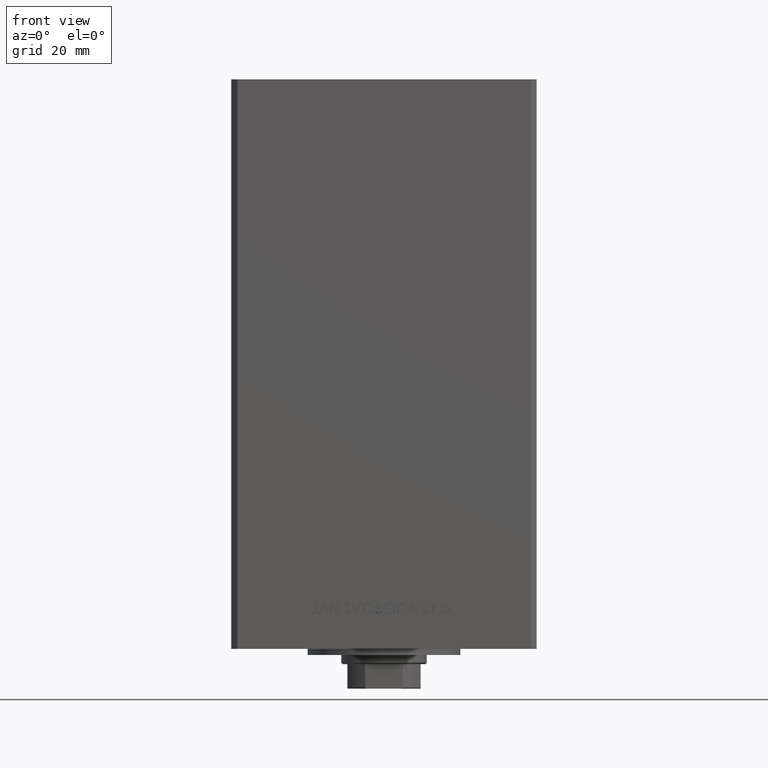
[diagram: clean part render]
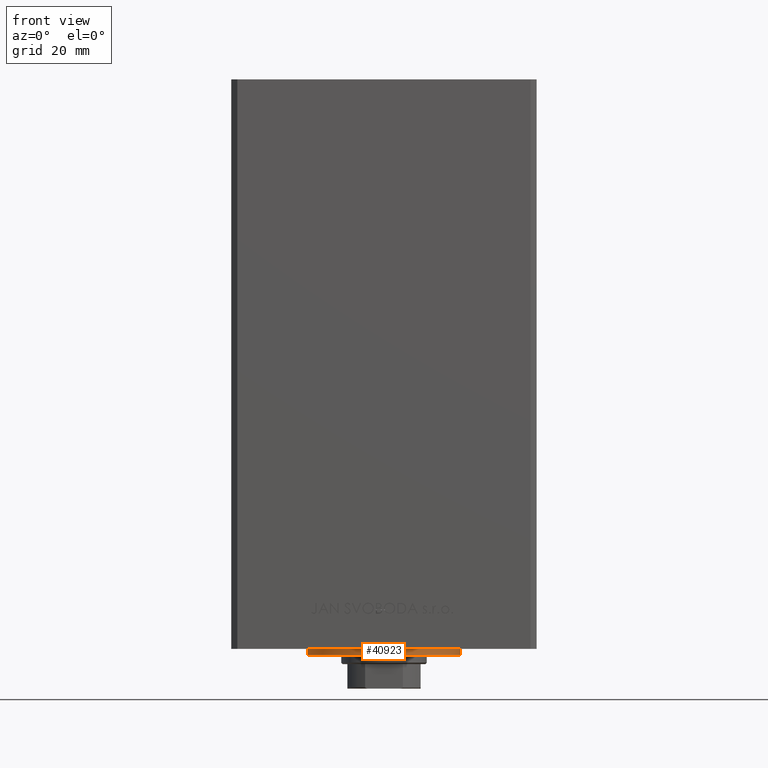
[diagram: same view with one face highlighted and labeled with its STEP entity id]
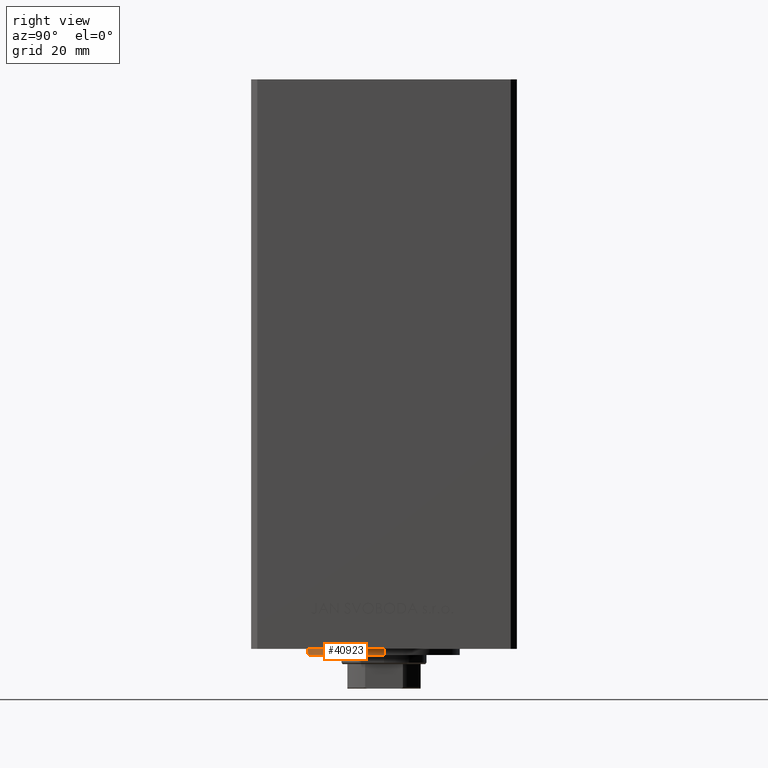
[diagram: same view with one face highlighted and labeled with its STEP entity id]
A machine part, front view. The second image highlights one B-rep face of the part: STEP entity #40923.
A second angle (right view) of the same face is appended — the face is thin or edge-on in the first view.
In plain terms, the highlighted cylindrical surface (partial cylindrical patch) has radius 25 mm, axis along (0, 0, 1).
Its self-contained STEP definition (entity closure, byte-faithful):
#69 = DIRECTION ( 'NONE',  ( 0.000000000000000000, 0.000000000000000000, 1.000000000000000000 ) ) ;
#1618 = ORIENTED_EDGE ( 'NONE', *, *, #45156, .F. ) ;
#1989 = ORIENTED_EDGE ( 'NONE', *, *, #18335, .T. ) ;
#2062 = DIRECTION ( 'NONE',  ( 1.000000000000000000, 0.000000000000000000, 0.000000000000000000 ) ) ;
#2500 = DIRECTION ( 'NONE',  ( 1.000000000000000000, 0.000000000000000000, 0.000000000000000000 ) ) ;
#3207 = CARTESIAN_POINT ( 'NONE',  ( 25.00000000000000000, -3.877276906038844941E-15, 2.000000000000000000 ) ) ;
#5344 = VERTEX_POINT ( 'NONE', #27191 ) ;
#5475 = DIRECTION ( 'NONE',  ( 0.000000000000000000, 0.000000000000000000, 1.000000000000000000 ) ) ;
#5744 = CARTESIAN_POINT ( 'NONE',  ( 0.000000000000000000, -6.938893903907228378E-15, 0.000000000000000000 ) ) ;
#6204 = DIRECTION ( 'NONE',  ( 1.000000000000000000, 0.000000000000000000, 0.000000000000000000 ) ) ;
#6313 = VERTEX_POINT ( 'NONE', #45803 ) ;
#6646 = CARTESIAN_POINT ( 'NONE',  ( 25.00000000000000000, -3.877276906038844941E-15, 2.000000000000000000 ) ) ;
#6912 = VERTEX_POINT ( 'NONE', #12299 ) ;
#9455 = CIRCLE ( 'NONE', #11832, 25.00000000000000000 ) ;
#10626 = DIRECTION ( 'NONE',  ( 0.000000000000000000, 0.000000000000000000, 1.000000000000000000 ) ) ;
#10867 = AXIS2_PLACEMENT_3D ( 'NONE', #37852, #69, #33621 ) ;
#11832 = AXIS2_PLACEMENT_3D ( 'NONE', #40277, #5475, #6204 ) ;
#12299 = CARTESIAN_POINT ( 'NONE',  ( -23.57022603955158502, -8.333333333333332149, 0.000000000000000000 ) ) ;
#13695 = DIRECTION ( 'NONE',  ( 0.000000000000000000, 0.000000000000000000, 1.000000000000000000 ) ) ;
#13913 = LINE ( 'NONE', #3207, #40341 ) ;
#14913 = VERTEX_POINT ( 'NONE', #38410 ) ;
#15014 = CARTESIAN_POINT ( 'NONE',  ( 0.000000000000000000, -6.938893903907228378E-15, 0.000000000000000000 ) ) ;
#16431 = CIRCLE ( 'NONE', #10867, 25.00000000000000000 ) ;
#17301 = CARTESIAN_POINT ( 'NONE',  ( -25.00000000000000000, -6.938893903907228378E-15, 0.000000000000000000 ) ) ;
#18089 = CARTESIAN_POINT ( 'NONE',  ( 0.000000000000000000, -6.938893903907228378E-15, 2.000000000000000000 ) ) ;
#18335 = EDGE_CURVE ( 'NONE', #32817, #6912, #16431, .T. ) ;
#18987 = CIRCLE ( 'NONE', #19825, 25.00000000000000000 ) ;
#19349 = CIRCLE ( 'NONE', #37575, 25.00000000000000000 ) ;
#19825 = AXIS2_PLACEMENT_3D ( 'NONE', #15014, #45343, #2062 ) ;
#20049 = CARTESIAN_POINT ( 'NONE',  ( -25.00000000000000000, -6.938893903907228378E-15, 2.000000000000000000 ) ) ;
#20505 = EDGE_CURVE ( 'NONE', #45270, #49188, #13913, .T. ) ;
#25603 = AXIS2_PLACEMENT_3D ( 'NONE', #18089, #10626, #43732 ) ;
#25855 = CARTESIAN_POINT ( 'NONE',  ( 25.00000000000000000, -3.877276906038844941E-15, 0.000000000000000000 ) ) ;
#25919 = DIRECTION ( 'NONE',  ( -0.000000000000000000, -0.000000000000000000, -1.000000000000000000 ) ) ;
#25937 = ORIENTED_EDGE ( 'NONE', *, *, #46953, .T. ) ;
#27191 = CARTESIAN_POINT ( 'NONE',  ( -25.00000000000000000, -6.938893903907228378E-15, 2.000000000000000000 ) ) ;
#27920 = EDGE_CURVE ( 'NONE', #14913, #6313, #9455, .T. ) ;
#28641 = EDGE_CURVE ( 'NONE', #6313, #49188, #18987, .T. ) ;
#29319 = ORIENTED_EDGE ( 'NONE', *, *, #35510, .T. ) ;
#29580 = CIRCLE ( 'NONE', #25603, 25.00000000000000000 ) ;
#32119 = ORIENTED_EDGE ( 'NONE', *, *, #20505, .F. ) ;
#32556 = VECTOR ( 'NONE', #34961, 1000.000000000000000 ) ;
#32817 = VERTEX_POINT ( 'NONE', #17301 ) ;
#33279 = DIRECTION ( 'NONE',  ( -0.000000000000000000, -0.000000000000000000, -1.000000000000000000 ) ) ;
#33621 = DIRECTION ( 'NONE',  ( 1.000000000000000000, 0.000000000000000000, 0.000000000000000000 ) ) ;
#34568 = ORIENTED_EDGE ( 'NONE', *, *, #28641, .T. ) ;
#34961 = DIRECTION ( 'NONE',  ( -0.000000000000000000, -0.000000000000000000, -1.000000000000000000 ) ) ;
#35448 = LINE ( 'NONE', #20049, #32556 ) ;
#35510 = EDGE_CURVE ( 'NONE', #5344, #32817, #35448, .T. ) ;
#37575 = AXIS2_PLACEMENT_3D ( 'NONE', #5744, #13695, #2500 ) ;
#37611 = CARTESIAN_POINT ( 'NONE',  ( 0.000000000000000000, -6.938893903907228378E-15, 2.000000000000000000 ) ) ;
#37852 = CARTESIAN_POINT ( 'NONE',  ( 0.000000000000000000, -6.938893903907228378E-15, 0.000000000000000000 ) ) ;
#38410 = CARTESIAN_POINT ( 'NONE',  ( 0.000000000000000000, -25.00000000000000000, 0.000000000000000000 ) ) ;
#40277 = CARTESIAN_POINT ( 'NONE',  ( 0.000000000000000000, -6.938893903907228378E-15, 0.000000000000000000 ) ) ;
#40341 = VECTOR ( 'NONE', #33279, 1000.000000000000000 ) ;
#40923 = ADVANCED_FACE ( 'NONE', ( #45323 ), #41850, .T. ) ;
#41112 = DIRECTION ( 'NONE',  ( -1.000000000000000000, 0.000000000000000000, 0.000000000000000000 ) ) ;
#41547 = ORIENTED_EDGE ( 'NONE', *, *, #27920, .T. ) ;
#41850 = CYLINDRICAL_SURFACE ( 'NONE', #44510, 25.00000000000000000 ) ;
#43732 = DIRECTION ( 'NONE',  ( 1.000000000000000000, 0.000000000000000000, 0.000000000000000000 ) ) ;
#43877 = EDGE_LOOP ( 'NONE', ( #32119, #1618, #29319, #1989, #25937, #41547, #34568 ) ) ;
#44510 = AXIS2_PLACEMENT_3D ( 'NONE', #37611, #25919, #41112 ) ;
#45156 = EDGE_CURVE ( 'NONE', #5344, #45270, #29580, .T. ) ;
#45270 = VERTEX_POINT ( 'NONE', #6646 ) ;
#45323 = FACE_OUTER_BOUND ( 'NONE', #43877, .T. ) ;
#45343 = DIRECTION ( 'NONE',  ( 0.000000000000000000, 0.000000000000000000, 1.000000000000000000 ) ) ;
#45803 = CARTESIAN_POINT ( 'NONE',  ( 23.57022603955158502, -8.333333333333332149, 0.000000000000000000 ) ) ;
#46953 = EDGE_CURVE ( 'NONE', #6912, #14913, #19349, .T. ) ;
#49188 = VERTEX_POINT ( 'NONE', #25855 ) ;